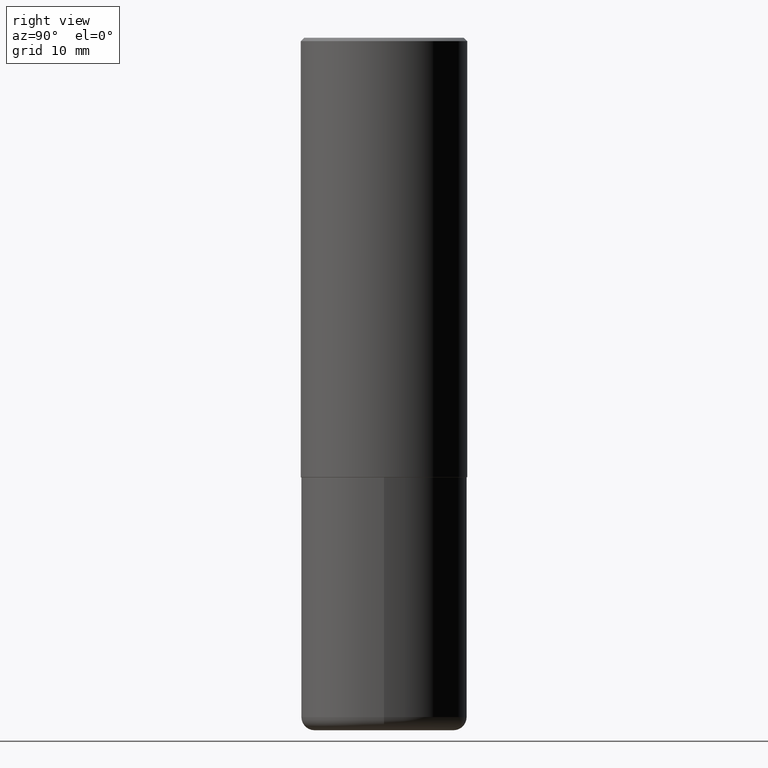
[diagram: clean part render]
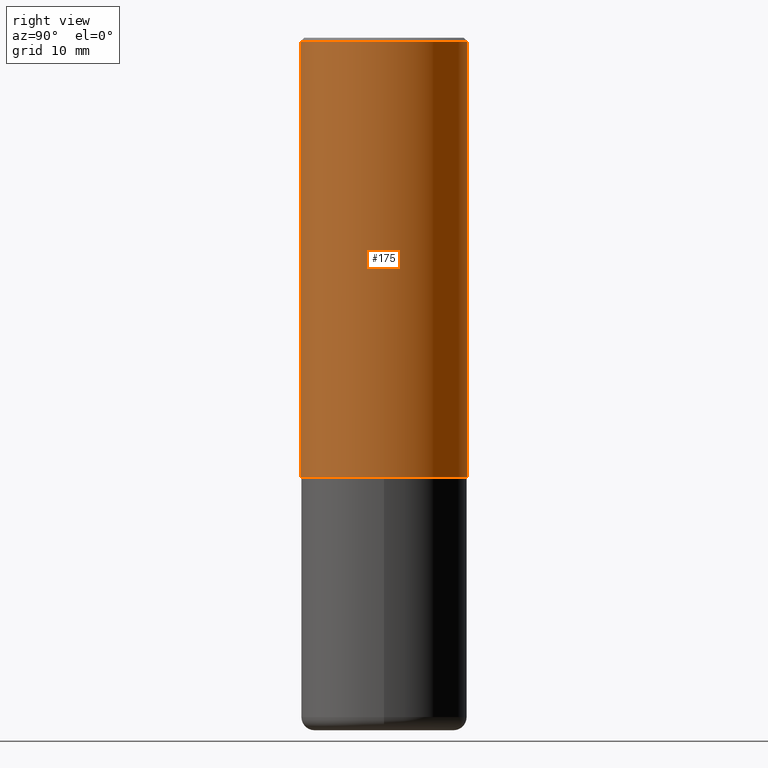
[diagram: same view with one face highlighted and labeled with its STEP entity id]
A machine part, right view. The second image highlights one B-rep face of the part: STEP entity #175.
In plain terms, the highlighted cylindrical surface (partial cylindrical patch) has radius 12.5006 mm, axis along (-0, 0, 1).
Its self-contained STEP definition (entity closure, byte-faithful):
#1 = CYLINDRICAL_SURFACE ( 'NONE', #76, 0.4921500000000000874 ) ;
#5 = VERTEX_POINT ( 'NONE', #95 ) ;
#11 = VERTEX_POINT ( 'NONE', #148 ) ;
#12 = DIRECTION ( 'NONE',  ( -2.446448598478590805E-29, 3.490078220512605001E-15, 1.000000000000000000 ) ) ;
#13 = VERTEX_POINT ( 'NONE', #407 ) ;
#27 = VERTEX_POINT ( 'NONE', #58 ) ;
#30 = VECTOR ( 'NONE', #342, 39.37007874015748143 ) ;
#41 = ORIENTED_EDGE ( 'NONE', *, *, #53, .T. ) ;
#53 = EDGE_CURVE ( 'NONE', #27, #11, #54, .T. ) ;
#54 = CIRCLE ( 'NONE', #160, 0.4921500000000002539 ) ;
#58 = CARTESIAN_POINT ( 'NONE',  ( -3.436665081823234245E-15, -0.4921500000000093022, -2.597399999999999043 ) ) ;
#67 = DIRECTION ( 'NONE',  ( -2.446448598478591086E-29, 3.490078220512604606E-15, 1.000000000000000000 ) ) ;
#72 = DIRECTION ( 'NONE',  ( -2.446448598478591086E-29, 3.490078220512604606E-15, 1.000000000000000000 ) ) ;
#76 = AXIS2_PLACEMENT_3D ( 'NONE', #385, #72, #388 ) ;
#81 = EDGE_CURVE ( 'NONE', #27, #5, #278, .T. ) ;
#86 = ORIENTED_EDGE ( 'NONE', *, *, #81, .F. ) ;
#95 = CARTESIAN_POINT ( 'NONE',  ( -3.376394089603258656E-15, -0.4921500000000000874, -0.01999999999999839059 ) ) ;
#98 = FACE_OUTER_BOUND ( 'NONE', #240, .T. ) ;
#106 = CARTESIAN_POINT ( 'NONE',  ( 3.496936074043333291E-15, 0.4921500000000000874, -1.717641996225278752E-15 ) ) ;
#137 = LINE ( 'NONE', #106, #179 ) ;
#148 = CARTESIAN_POINT ( 'NONE',  ( 3.496936074043366423E-15, 0.4921499999999912056, -2.597400000000002152 ) ) ;
#155 = CIRCLE ( 'NONE', #394, 0.4921500000000000319 ) ;
#157 = CARTESIAN_POINT ( 'NONE',  ( -3.436665081823296565E-15, -0.4921500000000000874, 1.717641996225278752E-15 ) ) ;
#160 = AXIS2_PLACEMENT_3D ( 'NONE', #413, #180, #206 ) ;
#175 = ADVANCED_FACE ( 'NONE', ( #98 ), #1, .T. ) ;
#179 = VECTOR ( 'NONE', #12, 39.37007874015748143 ) ;
#180 = DIRECTION ( 'NONE',  ( -2.446448598478591086E-29, 3.490078220512604606E-15, 1.000000000000000000 ) ) ;
#192 = EDGE_CURVE ( 'NONE', #5, #13, #155, .T. ) ;
#206 = DIRECTION ( 'NONE',  ( -6.982962677686266711E-15, -1.000000000000000000, 3.330506545156064285E-15 ) ) ;
#216 = DIRECTION ( 'NONE',  ( -6.982962677686265922E-15, -1.000000000000000000, 3.486624039460256542E-15 ) ) ;
#221 = ORIENTED_EDGE ( 'NONE', *, *, #192, .F. ) ;
#233 = ORIENTED_EDGE ( 'NONE', *, *, #322, .T. ) ;
#240 = EDGE_LOOP ( 'NONE', ( #41, #233, #221, #86 ) ) ;
#278 = LINE ( 'NONE', #157, #30 ) ;
#322 = EDGE_CURVE ( 'NONE', #11, #13, #137, .T. ) ;
#342 = DIRECTION ( 'NONE',  ( -2.446448598478590805E-29, 3.490078220512605001E-15, 1.000000000000000000 ) ) ;
#346 = CARTESIAN_POINT ( 'NONE',  ( 4.892897196957208060E-31, -6.980156441025246535E-17, -0.02000000000000010797 ) ) ;
#385 = CARTESIAN_POINT ( 'NONE',  ( 0.000000000000000000, 0.000000000000000000, 0.000000000000000000 ) ) ;
#388 = DIRECTION ( 'NONE',  ( -6.982962677686265922E-15, -1.000000000000000000, 3.490078220512604606E-15 ) ) ;
#394 = AXIS2_PLACEMENT_3D ( 'NONE', #346, #67, #216 ) ;
#407 = CARTESIAN_POINT ( 'NONE',  ( 3.436665081823296565E-15, 0.4921499999999999764, -0.02000000000000182188 ) ) ;
#413 = CARTESIAN_POINT ( 'NONE',  ( 6.354405589688293982E-29, -9.065129169959442290E-15, -2.597400000000000375 ) ) ;